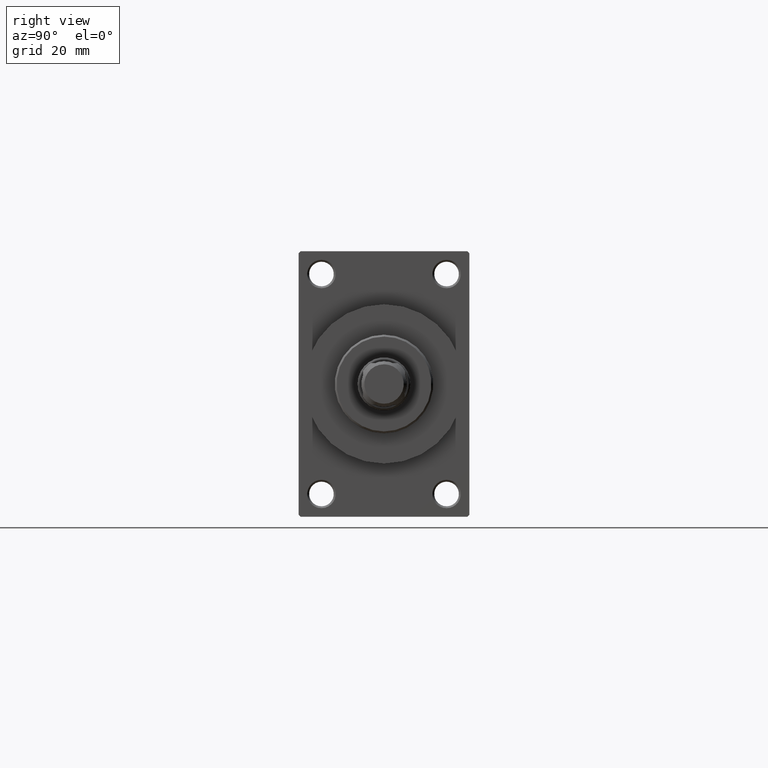
[diagram: clean part render]
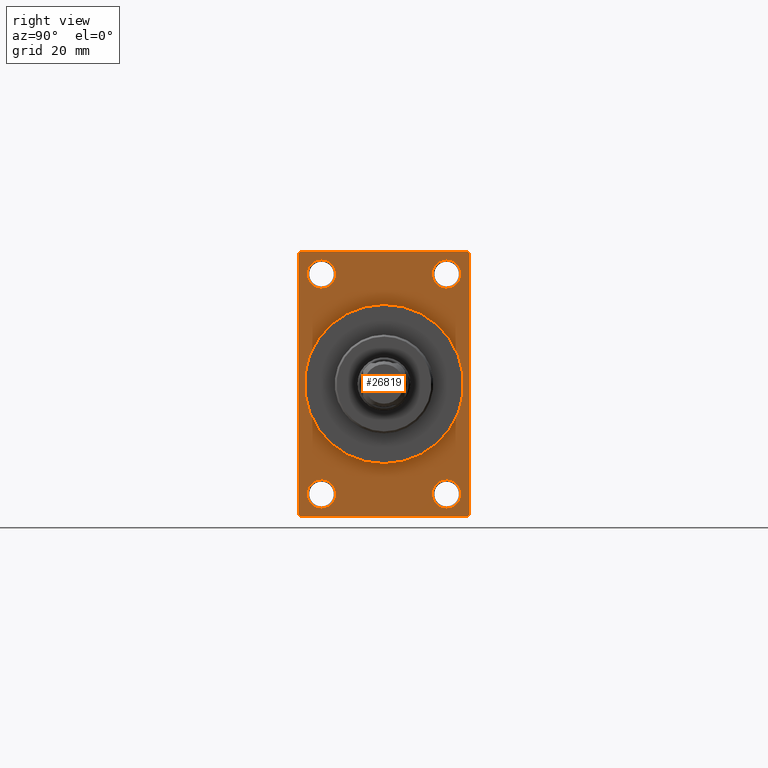
[diagram: same view with one face highlighted and labeled with its STEP entity id]
A machine part, right view. The second image highlights one B-rep face of the part: STEP entity #26819.
In plain terms, the highlighted planar face has unit normal (-1, 0, 0).
Its self-contained STEP definition (entity closure, byte-faithful):
#94 = VERTEX_POINT ( 'NONE', #14811 ) ;
#456 = LINE ( 'NONE', #22133, #25376 ) ;
#1261 = ORIENTED_EDGE ( 'NONE', *, *, #21946, .F. ) ;
#1476 = ORIENTED_EDGE ( 'NONE', *, *, #12959, .T. ) ;
#1580 = AXIS2_PLACEMENT_3D ( 'NONE', #3951, #18649, #26587 ) ;
#2101 = LINE ( 'NONE', #24263, #28085 ) ;
#2297 = CARTESIAN_POINT ( 'NONE',  ( 113.0000000000000142, -16.50000000000000000, -25.24999999999992184 ) ) ;
#2579 = EDGE_CURVE ( 'NONE', #35781, #21310, #20003, .T. ) ;
#2605 = CIRCLE ( 'NONE', #33372, 21.00000000000000000 ) ;
#2726 = VERTEX_POINT ( 'NONE', #23137 ) ;
#2809 = CARTESIAN_POINT ( 'NONE',  ( 113.0000000000000142, -16.50000000000000000, 32.75000000000007816 ) ) ;
#3497 = ORIENTED_EDGE ( 'NONE', *, *, #24752, .T. ) ;
#3680 = LINE ( 'NONE', #44134, #26099 ) ;
#3763 = DIRECTION ( 'NONE',  ( -1.000000000000000000, -0.000000000000000000, -0.000000000000000000 ) ) ;
#3860 = DIRECTION ( 'NONE',  ( -1.000000000000000000, -0.000000000000000000, -0.000000000000000000 ) ) ;
#3951 = CARTESIAN_POINT ( 'NONE',  ( 113.0000000000000142, 16.50000000000000000, -28.99999999999999289 ) ) ;
#4036 = CARTESIAN_POINT ( 'NONE',  ( 113.0000000000000142, 22.49999999999999645, 35.00000000000000000 ) ) ;
#4131 = VERTEX_POINT ( 'NONE', #2809 ) ;
#4593 = VERTEX_POINT ( 'NONE', #22135 ) ;
#4863 = VECTOR ( 'NONE', #25021, 1000.000000000000114 ) ;
#5187 = ORIENTED_EDGE ( 'NONE', *, *, #5374, .T. ) ;
#5374 = EDGE_CURVE ( 'NONE', #28492, #2726, #21258, .T. ) ;
#5635 = DIRECTION ( 'NONE',  ( 0.000000000000000000, 0.000000000000000000, 1.000000000000000000 ) ) ;
#6018 = CARTESIAN_POINT ( 'NONE',  ( 113.0000000000000142, 2.571758278209441661E-15, -21.00000000000000000 ) ) ;
#6061 = DIRECTION ( 'NONE',  ( 0.000000000000000000, 0.000000000000000000, -1.000000000000000000 ) ) ;
#6118 = FACE_OUTER_BOUND ( 'NONE', #27311, .T. ) ;
#6218 = DIRECTION ( 'NONE',  ( 0.000000000000000000, 0.000000000000000000, -1.000000000000000000 ) ) ;
#6234 = AXIS2_PLACEMENT_3D ( 'NONE', #39359, #6340, #5635 ) ;
#6274 = CARTESIAN_POINT ( 'NONE',  ( 113.0000000000000142, 16.50000000000000000, 25.24999999999993250 ) ) ;
#6310 = CARTESIAN_POINT ( 'NONE',  ( 113.0000000000000142, 21.99999999999999645, 35.00000000000000000 ) ) ;
#6340 = DIRECTION ( 'NONE',  ( -1.000000000000000000, -0.000000000000000000, -0.000000000000000000 ) ) ;
#6663 = DIRECTION ( 'NONE',  ( -0.000000000000000000, -0.7071067811865474617, -0.7071067811865474617 ) ) ;
#7178 = ORIENTED_EDGE ( 'NONE', *, *, #14095, .T. ) ;
#7456 = VERTEX_POINT ( 'NONE', #27550 ) ;
#7971 = DIRECTION ( 'NONE',  ( 0.000000000000000000, 0.000000000000000000, 1.000000000000000000 ) ) ;
#8212 = EDGE_CURVE ( 'NONE', #47391, #34883, #2101, .T. ) ;
#8926 = CIRCLE ( 'NONE', #15078, 3.750000000000069278 ) ;
#9347 = ORIENTED_EDGE ( 'NONE', *, *, #17490, .T. ) ;
#9741 = FACE_BOUND ( 'NONE', #12234, .T. ) ;
#10136 = ORIENTED_EDGE ( 'NONE', *, *, #8212, .T. ) ;
#11144 = DIRECTION ( 'NONE',  ( 0.000000000000000000, -1.000000000000000000, 0.000000000000000000 ) ) ;
#11322 = DIRECTION ( 'NONE',  ( 0.000000000000000000, 0.000000000000000000, 1.000000000000000000 ) ) ;
#11376 = VERTEX_POINT ( 'NONE', #32370 ) ;
#11529 = AXIS2_PLACEMENT_3D ( 'NONE', #33253, #3860, #11322 ) ;
#12008 = CARTESIAN_POINT ( 'NONE',  ( 113.0000000000000142, -21.99999999999997513, -35.00000000000000000 ) ) ;
#12234 = EDGE_LOOP ( 'NONE', ( #3497, #30401 ) ) ;
#12317 = CARTESIAN_POINT ( 'NONE',  ( 113.0000000000000142, -16.50000000000000000, 25.24999999999993960 ) ) ;
#12574 = CARTESIAN_POINT ( 'NONE',  ( 113.0000000000000142, -22.50000000000000355, 34.50000000000000000 ) ) ;
#12794 = ORIENTED_EDGE ( 'NONE', *, *, #2579, .T. ) ;
#12959 = EDGE_CURVE ( 'NONE', #19275, #4131, #27352, .T. ) ;
#13903 = CARTESIAN_POINT ( 'NONE',  ( 113.0000000000000142, -22.50000000000000355, 34.50000000000000000 ) ) ;
#13966 = DIRECTION ( 'NONE',  ( 0.000000000000000000, 0.000000000000000000, 1.000000000000000000 ) ) ;
#14095 = EDGE_CURVE ( 'NONE', #4131, #19275, #8926, .T. ) ;
#14269 = DIRECTION ( 'NONE',  ( 0.000000000000000000, -0.7071067811865474617, 0.7071067811865474617 ) ) ;
#14557 = AXIS2_PLACEMENT_3D ( 'NONE', #32409, #22057, #40580 ) ;
#14640 = EDGE_CURVE ( 'NONE', #29731, #38685, #43515, .T. ) ;
#14737 = DIRECTION ( 'NONE',  ( -1.000000000000000000, -0.000000000000000000, -0.000000000000000000 ) ) ;
#14811 = CARTESIAN_POINT ( 'NONE',  ( 113.0000000000000142, 22.49999999999999645, -34.50000000000000000 ) ) ;
#14850 = VERTEX_POINT ( 'NONE', #2297 ) ;
#15078 = AXIS2_PLACEMENT_3D ( 'NONE', #44634, #29957, #22733 ) ;
#15419 = EDGE_CURVE ( 'NONE', #11376, #14850, #41273, .T. ) ;
#16268 = DIRECTION ( 'NONE',  ( -0.000000000000000000, 0.000000000000000000, 1.000000000000000000 ) ) ;
#16747 = FACE_BOUND ( 'NONE', #17429, .T. ) ;
#16775 = EDGE_CURVE ( 'NONE', #38685, #47391, #16924, .T. ) ;
#16924 = LINE ( 'NONE', #17160, #25959 ) ;
#17160 = CARTESIAN_POINT ( 'NONE',  ( 113.0000000000000142, -22.50000000000000355, 35.00000000000000000 ) ) ;
#17408 = CARTESIAN_POINT ( 'NONE',  ( 113.0000000000000142, 16.50000000000000000, 32.75000000000007816 ) ) ;
#17429 = EDGE_LOOP ( 'NONE', ( #9347, #12794 ) ) ;
#17490 = EDGE_CURVE ( 'NONE', #21310, #35781, #29824, .T. ) ;
#18649 = DIRECTION ( 'NONE',  ( -1.000000000000000000, -0.000000000000000000, -0.000000000000000000 ) ) ;
#18730 = LINE ( 'NONE', #4036, #19205 ) ;
#19205 = VECTOR ( 'NONE', #33665, 1000.000000000000000 ) ;
#19275 = VERTEX_POINT ( 'NONE', #12317 ) ;
#20003 = CIRCLE ( 'NONE', #11529, 3.750000000000072831 ) ;
#20105 = ORIENTED_EDGE ( 'NONE', *, *, #37768, .T. ) ;
#20122 = CARTESIAN_POINT ( 'NONE',  ( 113.0000000000000142, 0.000000000000000000, 0.000000000000000000 ) ) ;
#20228 = DIRECTION ( 'NONE',  ( 1.000000000000000000, 0.000000000000000000, 0.000000000000000000 ) ) ;
#20359 = FACE_BOUND ( 'NONE', #37543, .T. ) ;
#20830 = PLANE ( 'NONE',  #25373 ) ;
#21258 = LINE ( 'NONE', #6310, #44154 ) ;
#21310 = VERTEX_POINT ( 'NONE', #6274 ) ;
#21398 = EDGE_CURVE ( 'NONE', #28492, #94, #18730, .T. ) ;
#21536 = VERTEX_POINT ( 'NONE', #23773 ) ;
#21656 = EDGE_CURVE ( 'NONE', #7456, #24354, #23017, .T. ) ;
#21946 = EDGE_CURVE ( 'NONE', #4593, #34883, #3680, .T. ) ;
#22057 = DIRECTION ( 'NONE',  ( 1.000000000000000000, 0.000000000000000000, 0.000000000000000000 ) ) ;
#22119 = CARTESIAN_POINT ( 'NONE',  ( 113.0000000000000142, -22.50000000000000355, -34.49999999999997158 ) ) ;
#22133 = CARTESIAN_POINT ( 'NONE',  ( 113.0000000000000142, 22.49999999999999645, 35.00000000000000000 ) ) ;
#22135 = CARTESIAN_POINT ( 'NONE',  ( 113.0000000000000142, 21.99999999999999645, -35.00000000000000000 ) ) ;
#22733 = DIRECTION ( 'NONE',  ( 0.000000000000000000, 0.000000000000000000, 1.000000000000000000 ) ) ;
#22767 = EDGE_CURVE ( 'NONE', #2726, #29731, #456, .T. ) ;
#23017 = CIRCLE ( 'NONE', #14557, 21.00000000000000000 ) ;
#23137 = CARTESIAN_POINT ( 'NONE',  ( 113.0000000000000142, 21.99999999999999645, 35.00000000000000000 ) ) ;
#23773 = CARTESIAN_POINT ( 'NONE',  ( 113.0000000000000142, 16.50000000000000000, -25.24999999999992184 ) ) ;
#24049 = ORIENTED_EDGE ( 'NONE', *, *, #47200, .F. ) ;
#24263 = CARTESIAN_POINT ( 'NONE',  ( 113.0000000000000142, -21.99999999999998934, -35.00000000000000000 ) ) ;
#24354 = VERTEX_POINT ( 'NONE', #6018 ) ;
#24510 = ORIENTED_EDGE ( 'NONE', *, *, #21656, .F. ) ;
#24567 = DIRECTION ( 'NONE',  ( -1.000000000000000000, -0.000000000000000000, -0.000000000000000000 ) ) ;
#24752 = EDGE_CURVE ( 'NONE', #44130, #21536, #28397, .T. ) ;
#25021 = DIRECTION ( 'NONE',  ( -0.000000000000000000, 0.7071067811865474617, 0.7071067811865474617 ) ) ;
#25373 = AXIS2_PLACEMENT_3D ( 'NONE', #20122, #34810, #16268 ) ;
#25376 = VECTOR ( 'NONE', #29600, 1000.000000000000000 ) ;
#25959 = VECTOR ( 'NONE', #6061, 1000.000000000000000 ) ;
#26041 = CARTESIAN_POINT ( 'NONE',  ( 113.0000000000000142, -16.50000000000000000, -28.99999999999999289 ) ) ;
#26099 = VECTOR ( 'NONE', #11144, 1000.000000000000000 ) ;
#26587 = DIRECTION ( 'NONE',  ( 0.000000000000000000, 0.000000000000000000, 1.000000000000000000 ) ) ;
#26819 = ADVANCED_FACE ( 'NONE', ( #38426, #20359, #9741, #16747, #39135, #6118 ), #20830, .F. ) ;
#27311 = EDGE_LOOP ( 'NONE', ( #35352, #10136, #1261, #45182, #46583, #5187, #33322, #32927 ) ) ;
#27352 = CIRCLE ( 'NONE', #44295, 3.750000000000069278 ) ;
#27550 = CARTESIAN_POINT ( 'NONE',  ( 113.0000000000000142, 0.000000000000000000, 21.00000000000000000 ) ) ;
#28085 = VECTOR ( 'NONE', #38957, 999.9999999999998863 ) ;
#28397 = CIRCLE ( 'NONE', #46066, 3.750000000000076383 ) ;
#28492 = VERTEX_POINT ( 'NONE', #36505 ) ;
#29600 = DIRECTION ( 'NONE',  ( 0.000000000000000000, -1.000000000000000000, 0.000000000000000000 ) ) ;
#29731 = VERTEX_POINT ( 'NONE', #30182 ) ;
#29824 = CIRCLE ( 'NONE', #44426, 3.750000000000072831 ) ;
#29957 = DIRECTION ( 'NONE',  ( -1.000000000000000000, -0.000000000000000000, -0.000000000000000000 ) ) ;
#30182 = CARTESIAN_POINT ( 'NONE',  ( 113.0000000000000142, -21.99999999999998934, 35.00000000000000000 ) ) ;
#30401 = ORIENTED_EDGE ( 'NONE', *, *, #36384, .T. ) ;
#31299 = CARTESIAN_POINT ( 'NONE',  ( 113.0000000000000142, 0.000000000000000000, 0.000000000000000000 ) ) ;
#31984 = DIRECTION ( 'NONE',  ( 0.000000000000000000, 0.000000000000000000, 1.000000000000000000 ) ) ;
#32076 = CARTESIAN_POINT ( 'NONE',  ( 113.0000000000000142, 16.50000000000000000, -32.75000000000007105 ) ) ;
#32370 = CARTESIAN_POINT ( 'NONE',  ( 113.0000000000000142, -16.50000000000000000, -32.75000000000007105 ) ) ;
#32409 = CARTESIAN_POINT ( 'NONE',  ( 113.0000000000000142, 0.000000000000000000, 0.000000000000000000 ) ) ;
#32927 = ORIENTED_EDGE ( 'NONE', *, *, #14640, .T. ) ;
#33253 = CARTESIAN_POINT ( 'NONE',  ( 113.0000000000000142, 16.50000000000000000, 29.00000000000000355 ) ) ;
#33322 = ORIENTED_EDGE ( 'NONE', *, *, #22767, .T. ) ;
#33372 = AXIS2_PLACEMENT_3D ( 'NONE', #31299, #20228, #6218 ) ;
#33665 = DIRECTION ( 'NONE',  ( 0.000000000000000000, 0.000000000000000000, -1.000000000000000000 ) ) ;
#34810 = DIRECTION ( 'NONE',  ( -1.000000000000000000, 0.000000000000000000, -0.000000000000000000 ) ) ;
#34883 = VERTEX_POINT ( 'NONE', #12008 ) ;
#35184 = EDGE_LOOP ( 'NONE', ( #1476, #7178 ) ) ;
#35352 = ORIENTED_EDGE ( 'NONE', *, *, #16775, .T. ) ;
#35781 = VERTEX_POINT ( 'NONE', #17408 ) ;
#36068 = DIRECTION ( 'NONE',  ( -1.000000000000000000, -0.000000000000000000, -0.000000000000000000 ) ) ;
#36324 = EDGE_LOOP ( 'NONE', ( #24510, #24049 ) ) ;
#36384 = EDGE_CURVE ( 'NONE', #21536, #44130, #39302, .T. ) ;
#36505 = CARTESIAN_POINT ( 'NONE',  ( 113.0000000000000142, 22.49999999999999645, 34.50000000000000000 ) ) ;
#36674 = AXIS2_PLACEMENT_3D ( 'NONE', #26041, #14737, #7971 ) ;
#37247 = DIRECTION ( 'NONE',  ( 0.000000000000000000, 0.000000000000000000, 1.000000000000000000 ) ) ;
#37543 = EDGE_LOOP ( 'NONE', ( #44651, #20105 ) ) ;
#37768 = EDGE_CURVE ( 'NONE', #14850, #11376, #45480, .T. ) ;
#38426 = FACE_BOUND ( 'NONE', #35184, .T. ) ;
#38685 = VERTEX_POINT ( 'NONE', #12574 ) ;
#38957 = DIRECTION ( 'NONE',  ( 0.000000000000000000, 0.7071067811865376918, -0.7071067811865574537 ) ) ;
#39135 = FACE_BOUND ( 'NONE', #36324, .T. ) ;
#39302 = CIRCLE ( 'NONE', #1580, 3.750000000000076383 ) ;
#39359 = CARTESIAN_POINT ( 'NONE',  ( 113.0000000000000142, -16.50000000000000000, -28.99999999999999289 ) ) ;
#39439 = CARTESIAN_POINT ( 'NONE',  ( 113.0000000000000142, 16.50000000000000000, 29.00000000000000355 ) ) ;
#40182 = LINE ( 'NONE', #46677, #4863 ) ;
#40580 = DIRECTION ( 'NONE',  ( 0.000000000000000000, 0.000000000000000000, -1.000000000000000000 ) ) ;
#41273 = CIRCLE ( 'NONE', #36674, 3.750000000000076383 ) ;
#42821 = VECTOR ( 'NONE', #6663, 1000.000000000000114 ) ;
#43177 = EDGE_CURVE ( 'NONE', #4593, #94, #40182, .T. ) ;
#43515 = LINE ( 'NONE', #13903, #42821 ) ;
#44130 = VERTEX_POINT ( 'NONE', #32076 ) ;
#44134 = CARTESIAN_POINT ( 'NONE',  ( 113.0000000000000142, 22.49999999999999645, -35.00000000000000000 ) ) ;
#44154 = VECTOR ( 'NONE', #14269, 1000.000000000000114 ) ;
#44295 = AXIS2_PLACEMENT_3D ( 'NONE', #46469, #24567, #13966 ) ;
#44426 = AXIS2_PLACEMENT_3D ( 'NONE', #39439, #3763, #37247 ) ;
#44634 = CARTESIAN_POINT ( 'NONE',  ( 113.0000000000000142, -16.50000000000000000, 29.00000000000000711 ) ) ;
#44651 = ORIENTED_EDGE ( 'NONE', *, *, #15419, .T. ) ;
#45182 = ORIENTED_EDGE ( 'NONE', *, *, #43177, .T. ) ;
#45480 = CIRCLE ( 'NONE', #6234, 3.750000000000076383 ) ;
#46066 = AXIS2_PLACEMENT_3D ( 'NONE', #47357, #36068, #31984 ) ;
#46469 = CARTESIAN_POINT ( 'NONE',  ( 113.0000000000000142, -16.50000000000000000, 29.00000000000000711 ) ) ;
#46583 = ORIENTED_EDGE ( 'NONE', *, *, #21398, .F. ) ;
#46677 = CARTESIAN_POINT ( 'NONE',  ( 113.0000000000000142, 22.49999999999999645, -34.50000000000000000 ) ) ;
#47200 = EDGE_CURVE ( 'NONE', #24354, #7456, #2605, .T. ) ;
#47357 = CARTESIAN_POINT ( 'NONE',  ( 113.0000000000000142, 16.50000000000000000, -28.99999999999999289 ) ) ;
#47391 = VERTEX_POINT ( 'NONE', #22119 ) ;